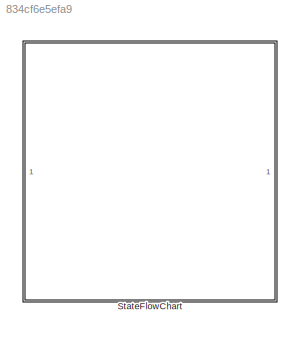
MODEL slx_834cf6e5efa9
KIND model
CONFIG AbsTol = auto
CONFIG FixedStep = auto
CONFIG MaxStep = auto
CONFIG MinStep = auto
CONFIG RelTol = 1e-3
CONFIG SampleTimeConstraint = Unconstrained
CONFIG Solver = ode45
CONFIG SolverMode = Auto
CONFIG SolverName = ode45
CONFIG StartTime = 0.0
CONFIG StopTime = 10.0
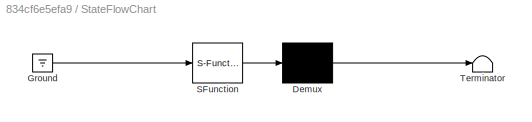
BLOCK [SubSystem] StateFlowChart
  ErrorFcn = Stateflow.Translate.translate
  PermitHierarchicalResolution = ExplicitOnly
  Ports = []
  RequestExecContextInheritance = off
  SFBlockType = Chart
  TreatAsAtomicUnit = on
  Variant = off
BLOCK [Demux] StateFlowChart/ Demux 
  Outputs = 1
  Ports = [1, 1]
BLOCK [Ground] StateFlowChart/ Ground 
BLOCK [S-Function] StateFlowChart/ SFunction 
  EnableBusSupport = on
  FunctionName = sf_sfun
  PortCounts = [1 1]
  Ports = [1, 1]
  SFunctionDeploymentMode = off
  Tag = Stateflow S-Function StateflowAndOrDecomposition 1
BLOCK [Terminator] StateFlowChart/ Terminator 
CHART StateFlowChart states=6 transitions=0
  STATE_LABEL 'OrState'
  STATE_LABEL 'SubState1InOr'
  STATE_LABEL 'SubState2InOr'
  STATE_LABEL 'SubState1InOr'
  STATE_LABEL 'SubState2InOr'
  STATE_LABEL 'AndState'
  STATE_LABEL 'SubState2InAnd'
  STATE_LABEL 'SubState1InAnd'
  STATE_LABEL 'SubState2InAnd'
  STATE_LABEL 'SubState1InAnd'
